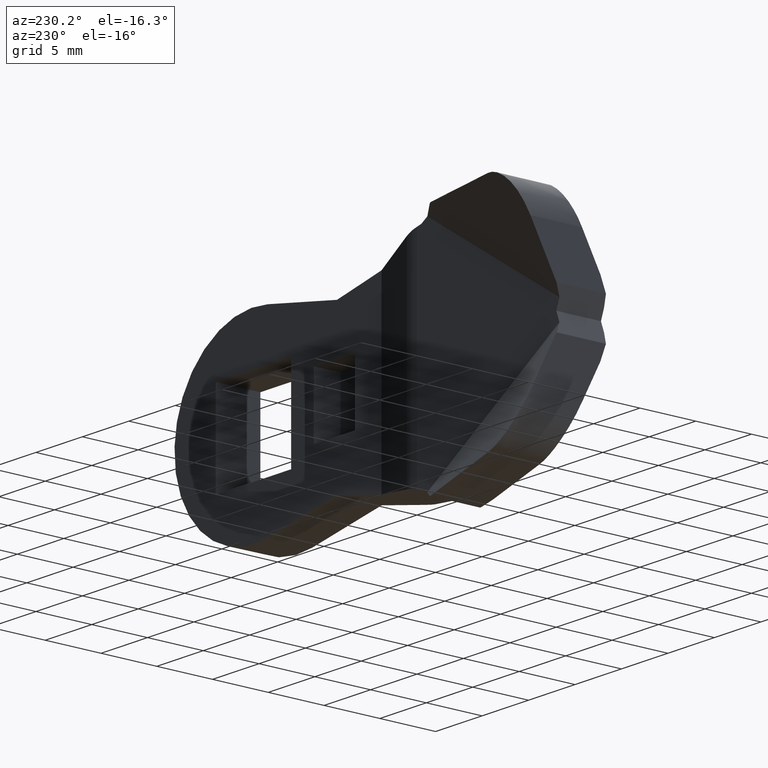
[diagram: clean part render]
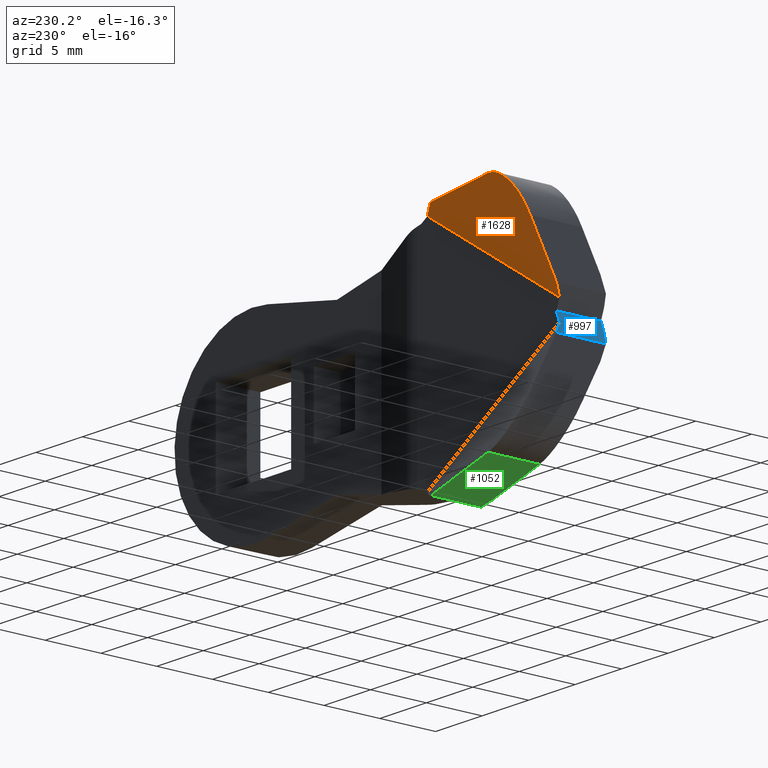
[diagram: same view with three faces highlighted in distinct colors, each labeled with its STEP entity id]
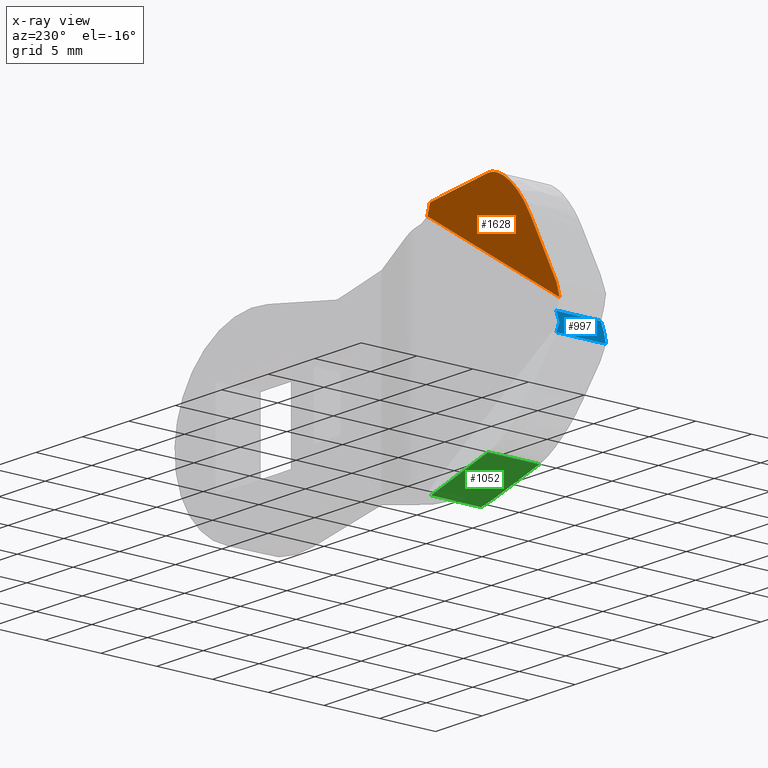
[diagram: x-ray of the same camera — body ghosted, the three highlighted faces saturated]
A machine part, auxiliary view with three faces highlighted in distinct colors.
The next image is the same camera in x-ray (body ghosted, the three faces saturated) — at least one of them is partly hidden behind the body in this view.
Their STEP definitions:

[orange] entity #1628 — the highlighted face is a freeform B-spline surface patch.
#117=CARTESIAN_POINT('',(-22.319539963078149,0.684391381523998,10.534270565629260));
#118=VERTEX_POINT('',#117);
#119=CARTESIAN_POINT('',(-22.030517662878101,0.558393820271253,10.461067315452521));
#120=VERTEX_POINT('',#119);
#121=CARTESIAN_POINT('',(-22.319539963078149,0.684391381524002,10.534270565629260));
#122=CARTESIAN_POINT('',(-22.163596123669578,0.640026928673456,10.542807676231467));
#123=CARTESIAN_POINT('',(-22.030517662878069,0.558393820271235,10.461067315452469));
#131=(BOUNDED_CURVE()B_SPLINE_CURVE(2,(#121,#122,#123),.UNSPECIFIED.,.F.,.U.)CURVE()GEOMETRIC_REPRESENTATION_ITEM()QUASI_UNIFORM_CURVE()RATIONAL_B_SPLINE_CURVE((1.0,0.954519457188069,1.0))REPRESENTATION_ITEM(''));
#132=EDGE_CURVE('',#118,#120,#131,.T.);
#848=CARTESIAN_POINT('',(-35.414167804088997,2.660803319190695,6.260583718898571));
#849=VERTEX_POINT('',#848);
#850=CARTESIAN_POINT('',(-31.639469198980152,3.335817450836445,10.024053124571640));
#851=VERTEX_POINT('',#850);
#852=CARTESIAN_POINT('',(-35.414167804088997,2.660803319190695,6.260583718898571));
#853=CARTESIAN_POINT('',(-35.208168835477551,4.351076581058439,9.828685461326634));
#854=CARTESIAN_POINT('',(-31.639469198980152,3.335817450836445,10.024053124571640));
#862=(BOUNDED_CURVE()B_SPLINE_CURVE(2,(#852,#853,#854),.UNSPECIFIED.,.F.,.U.)CURVE()GEOMETRIC_REPRESENTATION_ITEM()QUASI_UNIFORM_CURVE()RATIONAL_B_SPLINE_CURVE((1.0,0.745695443792474,1.0))REPRESENTATION_ITEM(''));
#863=EDGE_CURVE('',#849,#851,#862,.T.);
#1009=CARTESIAN_POINT('',(-35.671847346268599,0.546477974692497,1.797324365530490));
#1010=VERTEX_POINT('',#1009);
#1016=CARTESIAN_POINT('',(-35.335924504340753,-1.734723E-015,0.898662182766795));
#1017=VERTEX_POINT('',#1016);
#1018=CARTESIAN_POINT('',(-35.335924504340753,-1.734723E-015,0.898662182766795));
#1019=CARTESIAN_POINT('',(-35.671847346268599,0.546477974692497,1.797324365530490));
#1020=QUASI_UNIFORM_CURVE('',1,(#1018,#1019),.UNSPECIFIED.,.F.,.U.);
#1021=EDGE_CURVE('',#1017,#1010,#1020,.T.);
#1076=CARTESIAN_POINT('',(-22.319539963078149,0.684391381523998,10.534270565629260));
#1077=CARTESIAN_POINT('',(-31.639469198980152,3.335817450836445,10.024053124571640));
#1078=QUASI_UNIFORM_CURVE('',1,(#1076,#1077),.UNSPECIFIED.,.F.,.U.);
#1079=EDGE_CURVE('',#118,#851,#1078,.T.);
#1147=CARTESIAN_POINT('',(-21.120222911500250,2.775558E-014,9.901939858234590));
#1148=VERTEX_POINT('',#1147);
#1149=CARTESIAN_POINT('',(-21.120222911500250,2.775558E-014,9.901939858234590));
#1150=CARTESIAN_POINT('',(-22.030517662878101,0.558393820271253,10.461067315452521));
#1151=QUASI_UNIFORM_CURVE('',1,(#1149,#1150),.UNSPECIFIED.,.F.,.U.);
#1152=EDGE_CURVE('',#1148,#120,#1151,.T.);
#1602=CARTESIAN_POINT('',(-35.414167804088997,2.660803319190695,6.260583718898571));
#1603=CARTESIAN_POINT('',(-35.671847346268599,0.546477974692497,1.797324365530490));
#1604=QUASI_UNIFORM_CURVE('',1,(#1602,#1603),.UNSPECIFIED.,.F.,.U.);
#1605=EDGE_CURVE('',#849,#1010,#1604,.T.);
#1610=CARTESIAN_POINT('',(-36.515315623633683,0.111928935748631,0.379352760137077));
#1611=CARTESIAN_POINT('',(-20.998193140484300,-4.233211040077634,1.369826031284106));
#1612=CARTESIAN_POINT('',(-35.848225017057807,4.732689769405725,10.199431959443229));
#1613=CARTESIAN_POINT('',(-20.331102533908439,0.387549793579460,11.189905230590270));
#1614=B_SPLINE_SURFACE_WITH_KNOTS('',1,1,((#1610,#1612),(#1611,#1613)),.UNSPECIFIED.,.F.,.F.,.U.,(2,2),(2,2),(0.0,16.144422221542651),(0.0,10.873380157057261),.UNSPECIFIED.);
#1615=ORIENTED_EDGE('',*,*,#1079,.F.);
#1616=ORIENTED_EDGE('',*,*,#132,.T.);
#1617=ORIENTED_EDGE('',*,*,#1152,.F.);
#1618=CARTESIAN_POINT('',(-35.335924504340753,-1.734723E-015,0.898662182766795));
#1619=CARTESIAN_POINT('',(-21.120222911500250,2.775558E-014,9.901939858234590));
#1620=QUASI_UNIFORM_CURVE('',1,(#1618,#1619),.UNSPECIFIED.,.F.,.U.);
#1621=EDGE_CURVE('',#1017,#1148,#1620,.T.);
#1622=ORIENTED_EDGE('',*,*,#1621,.F.);
#1623=ORIENTED_EDGE('',*,*,#1021,.T.);
#1624=ORIENTED_EDGE('',*,*,#1605,.F.);
#1625=ORIENTED_EDGE('',*,*,#863,.T.);
#1626=EDGE_LOOP('',(#1615,#1616,#1617,#1622,#1623,#1624,#1625));
#1627=FACE_OUTER_BOUND('',#1626,.T.);
#1628=ADVANCED_FACE('',(#1627),#1614,.F.);

[blue] entity #997 — the highlighted face is a freeform B-spline surface patch.
#541=CARTESIAN_POINT('',(-35.335924522680898,-4.000000189989805,-0.898662231830660));
#542=VERTEX_POINT('',#541);
#548=CARTESIAN_POINT('',(-35.671847346268692,-3.888237042275480,-1.797324365528990));
#549=VERTEX_POINT('',#548);
#550=CARTESIAN_POINT('',(-35.671847346268692,-3.888237042275480,-1.797324365528990));
#551=CARTESIAN_POINT('',(-35.506265667288190,-4.000000189989805,-1.354359569791908));
#552=CARTESIAN_POINT('',(-35.335924522680898,-4.000000189989805,-0.898662231830660));
#560=(BOUNDED_CURVE()B_SPLINE_CURVE(2,(#550,#551,#552),.UNSPECIFIED.,.F.,.U.)CURVE()GEOMETRIC_REPRESENTATION_ITEM()QUASI_UNIFORM_CURVE()RATIONAL_B_SPLINE_CURVE((1.0,0.992990234864164,1.0))REPRESENTATION_ITEM(''));
#561=EDGE_CURVE('',#549,#542,#560,.T.);
#956=CARTESIAN_POINT('',(-35.705406191533520,-4.227096594787392,-1.887101127846048));
#957=CARTESIAN_POINT('',(-34.966442745065507,-4.227096594787392,0.089776955147867));
#958=CARTESIAN_POINT('',(-35.705406191533520,0.773574664030861,-1.887101127846048));
#959=CARTESIAN_POINT('',(-34.966442745065507,0.773574664030861,0.089776955147867));
#960=B_SPLINE_SURFACE_WITH_KNOTS('',1,1,((#956,#958),(#957,#959)),.UNSPECIFIED.,.F.,.F.,.U.,(2,2),(2,2),(0.0,2.110477180695773),(0.0,5.000671258818254),.UNSPECIFIED.);
#961=CARTESIAN_POINT('',(-35.671847346268599,0.546477974692497,-1.797324365530485));
#962=VERTEX_POINT('',#961);
#963=CARTESIAN_POINT('',(-35.671847346268599,0.546477974692497,-1.797324365530485));
#964=CARTESIAN_POINT('',(-35.671847346268692,-3.888237042275480,-1.797324365528990));
#965=QUASI_UNIFORM_CURVE('',1,(#963,#964),.UNSPECIFIED.,.F.,.U.);
#966=EDGE_CURVE('',#962,#549,#965,.T.);
#967=ORIENTED_EDGE('',*,*,#966,.T.);
#968=ORIENTED_EDGE('',*,*,#561,.T.);
#969=CARTESIAN_POINT('',(-35.000001662411087,-4.000000189989805,1.136868E-013));
#970=VERTEX_POINT('',#969);
#971=CARTESIAN_POINT('',(-35.335924522680898,-4.000000189989805,-0.898662231830660));
#972=CARTESIAN_POINT('',(-35.000001662411087,-4.000000189989805,1.136868E-013));
#973=QUASI_UNIFORM_CURVE('',1,(#971,#972),.UNSPECIFIED.,.F.,.U.);
#974=EDGE_CURVE('',#542,#970,#973,.T.);
#975=ORIENTED_EDGE('',*,*,#974,.T.);
#976=CARTESIAN_POINT('',(-35.000001662411087,0.0,1.136868E-013));
#977=VERTEX_POINT('',#976);
#978=CARTESIAN_POINT('',(-35.000001662411087,-4.000000189989805,1.136868E-013));
#979=CARTESIAN_POINT('',(-35.000001662411087,0.0,1.136868E-013));
#980=QUASI_UNIFORM_CURVE('',1,(#978,#979),.UNSPECIFIED.,.F.,.U.);
#981=EDGE_CURVE('',#970,#977,#980,.T.);
#982=ORIENTED_EDGE('',*,*,#981,.T.);
#983=CARTESIAN_POINT('',(-35.335924504340753,-8.673617E-016,-0.898662182766805));
#984=VERTEX_POINT('',#983);
#985=CARTESIAN_POINT('',(-35.000001662411087,0.0,1.136868E-013));
#986=CARTESIAN_POINT('',(-35.335924504340753,-8.673617E-016,-0.898662182766805));
#987=QUASI_UNIFORM_CURVE('',1,(#985,#986),.UNSPECIFIED.,.F.,.U.);
#988=EDGE_CURVE('',#977,#984,#987,.T.);
#989=ORIENTED_EDGE('',*,*,#988,.T.);
#990=CARTESIAN_POINT('',(-35.671847346268599,0.546477974692497,-1.797324365530485));
#991=CARTESIAN_POINT('',(-35.335924504340753,-8.673617E-016,-0.898662182766805));
#992=QUASI_UNIFORM_CURVE('',1,(#990,#991),.UNSPECIFIED.,.F.,.U.);
#993=EDGE_CURVE('',#962,#984,#992,.T.);
#994=ORIENTED_EDGE('',*,*,#993,.F.);
#995=EDGE_LOOP('',(#967,#968,#975,#982,#989,#994));
#996=FACE_OUTER_BOUND('',#995,.T.);
#997=ADVANCED_FACE('',(#996),#960,.T.);

[green] entity #1052 — the highlighted face is a freeform B-spline surface patch.
#60=CARTESIAN_POINT('',(-22.319539963078149,0.684391381523998,-10.534270565629260));
#61=VERTEX_POINT('',#60);
#82=CARTESIAN_POINT('',(-22.319539963078149,-3.823251987303410,-10.534270565629280));
#83=VERTEX_POINT('',#82);
#95=CARTESIAN_POINT('',(-22.319539963078149,0.684391381523998,-10.534270565629260));
#96=CARTESIAN_POINT('',(-22.319539963078149,-3.823251987303410,-10.534270565629280));
#97=QUASI_UNIFORM_CURVE('',1,(#95,#96),.UNSPECIFIED.,.F.,.U.);
#98=EDGE_CURVE('',#61,#83,#97,.T.);
#510=CARTESIAN_POINT('',(-24.030205217989849,-3.457099397804631,-10.440620578942140));
#511=VERTEX_POINT('',#510);
#512=CARTESIAN_POINT('',(-22.319539963078149,-3.823251987303410,-10.534270565629271));
#513=CARTESIAN_POINT('',(-23.217890057165093,-3.688194885698644,-10.485090590698428));
#514=CARTESIAN_POINT('',(-24.030205217989849,-3.457099397804626,-10.440620578942140));
#522=(BOUNDED_CURVE()B_SPLINE_CURVE(2,(#512,#513,#514),.UNSPECIFIED.,.F.,.U.)CURVE()GEOMETRIC_REPRESENTATION_ITEM()QUASI_UNIFORM_CURVE()RATIONAL_B_SPLINE_CURVE((1.0,0.993468821219435,1.0))REPRESENTATION_ITEM(''));
#523=EDGE_CURVE('',#83,#511,#522,.T.);
#909=CARTESIAN_POINT('',(-31.639469198980152,3.335817450836445,-10.024053124571640));
#910=VERTEX_POINT('',#909);
#926=CARTESIAN_POINT('',(-31.639469198980152,-1.292340376914348,-10.024053124571640));
#927=VERTEX_POINT('',#926);
#928=CARTESIAN_POINT('',(-31.639469198980152,-1.292340376914348,-10.024053124571640));
#929=CARTESIAN_POINT('',(-31.639469198980152,3.335817450836445,-10.024053124571640));
#930=QUASI_UNIFORM_CURVE('',1,(#928,#929),.UNSPECIFIED.,.F.,.U.);
#931=EDGE_CURVE('',#927,#910,#930,.T.);
#1032=CARTESIAN_POINT('',(-21.854009603297499,3.693412888191643,-10.559755921031650));
#1033=CARTESIAN_POINT('',(-32.104999892067440,3.693412888191643,-9.998567750922476));
#1034=CARTESIAN_POINT('',(-21.854009603297499,-4.180847680686882,-10.559755921031650));
#1035=CARTESIAN_POINT('',(-32.104999892067440,-4.180847680686882,-9.998567750922476));
#1036=B_SPLINE_SURFACE_WITH_KNOTS('',1,1,((#1032,#1034),(#1033,#1035)),.UNSPECIFIED.,.F.,.F.,.U.,(2,2),(2,2),(0.0,10.266339857160681),(0.0,7.874260568878525),.UNSPECIFIED.);
#1037=CARTESIAN_POINT('',(-31.639469198980152,3.335817450836445,-10.024053124571640));
#1038=CARTESIAN_POINT('',(-22.319539963078149,0.684391381523998,-10.534270565629260));
#1039=QUASI_UNIFORM_CURVE('',1,(#1037,#1038),.UNSPECIFIED.,.F.,.U.);
#1040=EDGE_CURVE('',#910,#61,#1039,.T.);
#1041=ORIENTED_EDGE('',*,*,#1040,.T.);
#1042=ORIENTED_EDGE('',*,*,#98,.T.);
#1043=ORIENTED_EDGE('',*,*,#523,.T.);
#1044=CARTESIAN_POINT('',(-31.639469198980152,-1.292340376914348,-10.024053124571640));
#1045=CARTESIAN_POINT('',(-24.030205217989849,-3.457099397804631,-10.440620578942140));
#1046=QUASI_UNIFORM_CURVE('',1,(#1044,#1045),.UNSPECIFIED.,.F.,.U.);
#1047=EDGE_CURVE('',#927,#511,#1046,.T.);
#1048=ORIENTED_EDGE('',*,*,#1047,.F.);
#1049=ORIENTED_EDGE('',*,*,#931,.T.);
#1050=EDGE_LOOP('',(#1041,#1042,#1043,#1048,#1049));
#1051=FACE_OUTER_BOUND('',#1050,.T.);
#1052=ADVANCED_FACE('',(#1051),#1036,.F.);